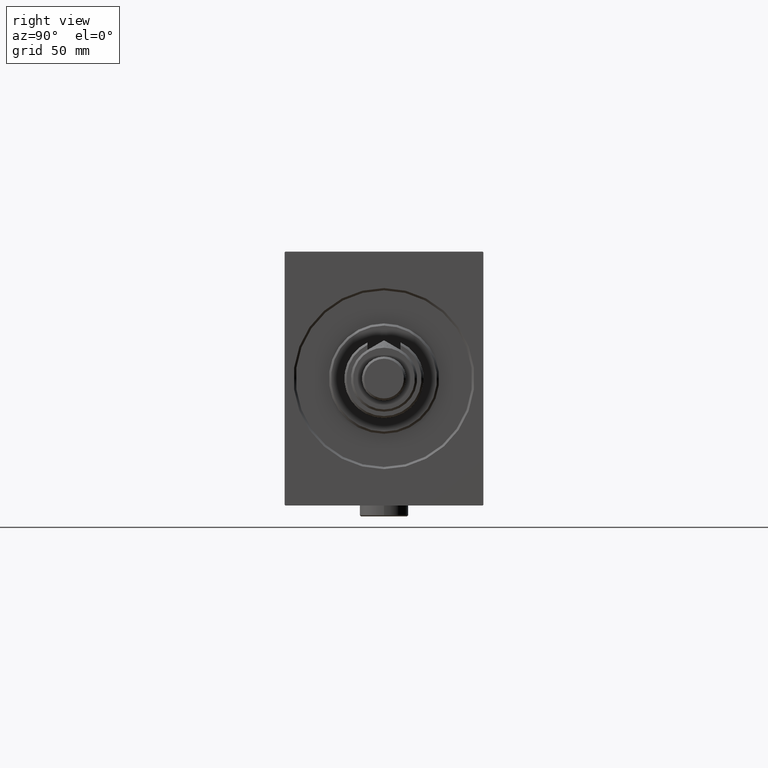
[diagram: clean part render]
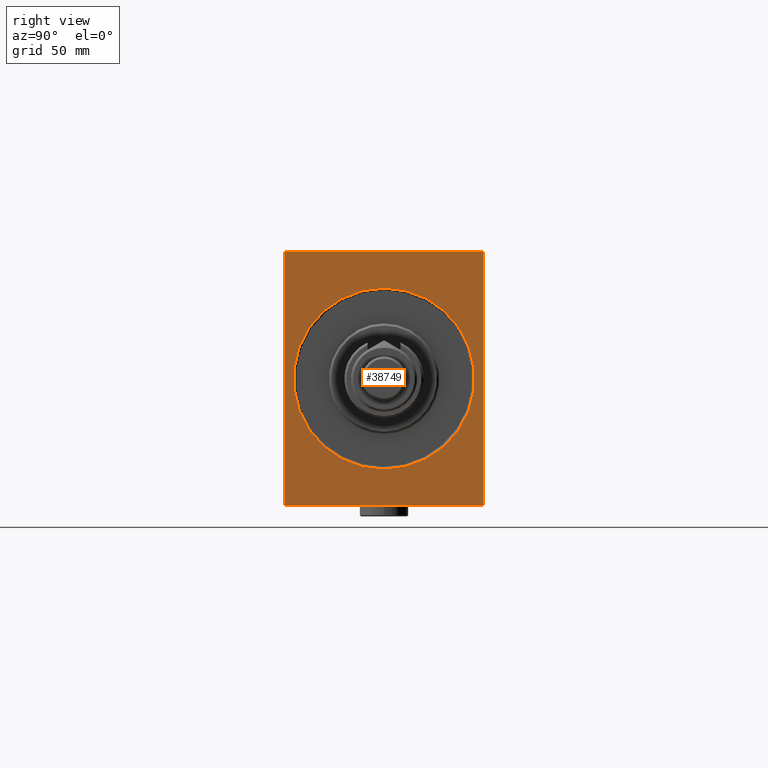
[diagram: same view with one face highlighted and labeled with its STEP entity id]
A machine part, right view. The second image highlights one B-rep face of the part: STEP entity #38749.
In plain terms, the highlighted planar face has unit normal (-1, 0, 0).
Its self-contained STEP definition (entity closure, byte-faithful):
#77 = VERTEX_POINT ( 'NONE', #42113 ) ;
#329 = DIRECTION ( 'NONE',  ( -0.000000000000000000, 0.000000000000000000, -1.000000000000000000 ) ) ;
#408 = CARTESIAN_POINT ( 'NONE',  ( 0.000000000000000000, -45.00000000000000000, 57.20000000000000284 ) ) ;
#612 = CARTESIAN_POINT ( 'NONE',  ( 0.000000000000000000, 0.000000000000000000, 0.000000000000000000 ) ) ;
#634 = EDGE_CURVE ( 'NONE', #77, #33424, #11906, .T. ) ;
#847 = EDGE_CURVE ( 'NONE', #77, #18767, #47194, .T. ) ;
#2350 = LINE ( 'NONE', #16895, #6766 ) ;
#3189 = LINE ( 'NONE', #37012, #34789 ) ;
#3440 = CARTESIAN_POINT ( 'NONE',  ( 0.000000000000000000, 0.000000000000000000, 0.000000000000000000 ) ) ;
#3496 = DIRECTION ( 'NONE',  ( 0.000000000000000000, 0.000000000000000000, -1.000000000000000000 ) ) ;
#4346 = VERTEX_POINT ( 'NONE', #44578 ) ;
#4377 = DIRECTION ( 'NONE',  ( 1.000000000000000000, 0.000000000000000000, -0.000000000000000000 ) ) ;
#4507 = CARTESIAN_POINT ( 'NONE',  ( 0.000000000000000000, 45.00000000000001421, -57.20000000000006679 ) ) ;
#4944 = EDGE_CURVE ( 'NONE', #15700, #15933, #3189, .T. ) ;
#5766 = EDGE_CURVE ( 'NONE', #39246, #20037, #8890, .T. ) ;
#5885 = VECTOR ( 'NONE', #34038, 1000.000000000000114 ) ;
#6015 = AXIS2_PLACEMENT_3D ( 'NONE', #3440, #4377, #329 ) ;
#6537 = DIRECTION ( 'NONE',  ( -0.000000000000000000, 0.7071067811865474617, 0.7071067811865474617 ) ) ;
#6766 = VECTOR ( 'NONE', #38890, 1000.000000000000000 ) ;
#6837 = ORIENTED_EDGE ( 'NONE', *, *, #34240, .T. ) ;
#6866 = CARTESIAN_POINT ( 'NONE',  ( 0.000000000000000000, 45.00000000000001421, -57.50000000000000711 ) ) ;
#8636 = LINE ( 'NONE', #31051, #24345 ) ;
#8657 = ORIENTED_EDGE ( 'NONE', *, *, #39963, .F. ) ;
#8890 = CIRCLE ( 'NONE', #46224, 41.00000000000003553 ) ;
#10981 = DIRECTION ( 'NONE',  ( 1.000000000000000000, 0.000000000000000000, -0.000000000000000000 ) ) ;
#11194 = CARTESIAN_POINT ( 'NONE',  ( 0.000000000000000000, -44.69999999999997442, 57.49999999999999289 ) ) ;
#11249 = DIRECTION ( 'NONE',  ( -0.000000000000000000, 0.7071067811865066055, -0.7071067811865884289 ) ) ;
#11906 = LINE ( 'NONE', #4507, #39961 ) ;
#12015 = DIRECTION ( 'NONE',  ( 0.000000000000000000, -1.000000000000000000, -2.312964634635742957E-16 ) ) ;
#12091 = CARTESIAN_POINT ( 'NONE',  ( 0.000000000000000000, 5.021051876504152118E-15, -41.00000000000003553 ) ) ;
#12193 = CARTESIAN_POINT ( 'NONE',  ( 0.000000000000000000, -44.70000000000005969, -57.50000000000002132 ) ) ;
#12487 = CARTESIAN_POINT ( 'NONE',  ( 0.000000000000000000, 45.00000000000001421, 57.50000000000001421 ) ) ;
#12923 = ORIENTED_EDGE ( 'NONE', *, *, #847, .F. ) ;
#14114 = EDGE_CURVE ( 'NONE', #23502, #18767, #29862, .T. ) ;
#15031 = CARTESIAN_POINT ( 'NONE',  ( 0.000000000000000000, 0.000000000000000000, 0.000000000000000000 ) ) ;
#15700 = VERTEX_POINT ( 'NONE', #408 ) ;
#15814 = CARTESIAN_POINT ( 'NONE',  ( 0.000000000000000000, 0.000000000000000000, 41.00000000000003553 ) ) ;
#15933 = VERTEX_POINT ( 'NONE', #11194 ) ;
#16895 = CARTESIAN_POINT ( 'NONE',  ( 0.000000000000000000, -45.00000000000000000, 57.49999999999999289 ) ) ;
#17531 = ORIENTED_EDGE ( 'NONE', *, *, #34159, .T. ) ;
#18241 = VECTOR ( 'NONE', #12015, 1000.000000000000000 ) ;
#18767 = VERTEX_POINT ( 'NONE', #19870 ) ;
#18877 = CARTESIAN_POINT ( 'NONE',  ( 0.000000000000000000, 44.70000000000004547, 57.50000000000001421 ) ) ;
#19870 = CARTESIAN_POINT ( 'NONE',  ( 0.000000000000000000, 45.00000000000001421, 57.19999999999998863 ) ) ;
#20037 = VERTEX_POINT ( 'NONE', #15814 ) ;
#21424 = DIRECTION ( 'NONE',  ( 0.000000000000000000, 0.000000000000000000, 1.000000000000000000 ) ) ;
#22626 = AXIS2_PLACEMENT_3D ( 'NONE', #612, #25225, #3496 ) ;
#22979 = ORIENTED_EDGE ( 'NONE', *, *, #24145, .F. ) ;
#23502 = VERTEX_POINT ( 'NONE', #31209 ) ;
#24145 = EDGE_CURVE ( 'NONE', #23502, #15933, #44966, .T. ) ;
#24345 = VECTOR ( 'NONE', #26998, 1000.000000000000000 ) ;
#24704 = FACE_BOUND ( 'NONE', #45747, .T. ) ;
#25225 = DIRECTION ( 'NONE',  ( 1.000000000000000000, 0.000000000000000000, -0.000000000000000000 ) ) ;
#26998 = DIRECTION ( 'NONE',  ( 0.000000000000000000, 1.000000000000000000, 1.541976423090495140E-16 ) ) ;
#27754 = VECTOR ( 'NONE', #21424, 1000.000000000000000 ) ;
#28639 = VERTEX_POINT ( 'NONE', #12193 ) ;
#29862 = LINE ( 'NONE', #18877, #32278 ) ;
#30378 = CARTESIAN_POINT ( 'NONE',  ( 0.000000000000000000, 44.70000000000004547, -57.50000000000000711 ) ) ;
#31051 = CARTESIAN_POINT ( 'NONE',  ( 0.000000000000000000, -45.00000000000000000, -57.50000000000002132 ) ) ;
#31209 = CARTESIAN_POINT ( 'NONE',  ( 0.000000000000000000, 44.70000000000004547, 57.50000000000001421 ) ) ;
#31883 = ORIENTED_EDGE ( 'NONE', *, *, #42640, .F. ) ;
#32002 = ORIENTED_EDGE ( 'NONE', *, *, #634, .T. ) ;
#32278 = VECTOR ( 'NONE', #11249, 1000.000000000000000 ) ;
#32468 = DIRECTION ( 'NONE',  ( 0.000000000000000000, 0.000000000000000000, -1.000000000000000000 ) ) ;
#33267 = PLANE ( 'NONE',  #6015 ) ;
#33424 = VERTEX_POINT ( 'NONE', #30378 ) ;
#34038 = DIRECTION ( 'NONE',  ( 0.000000000000000000, -0.7071067811865474617, 0.7071067811865474617 ) ) ;
#34159 = EDGE_CURVE ( 'NONE', #20037, #39246, #47042, .T. ) ;
#34240 = EDGE_CURVE ( 'NONE', #28639, #4346, #41449, .T. ) ;
#34789 = VECTOR ( 'NONE', #6537, 1000.000000000000114 ) ;
#35707 = FACE_OUTER_BOUND ( 'NONE', #41842, .T. ) ;
#37012 = CARTESIAN_POINT ( 'NONE',  ( 0.000000000000000000, -45.00000000000000000, 57.20000000000000284 ) ) ;
#37292 = ORIENTED_EDGE ( 'NONE', *, *, #4944, .T. ) ;
#38472 = ORIENTED_EDGE ( 'NONE', *, *, #5766, .T. ) ;
#38749 = ADVANCED_FACE ( 'NONE', ( #24704, #35707 ), #33267, .F. ) ;
#38890 = DIRECTION ( 'NONE',  ( 0.000000000000000000, 0.000000000000000000, -1.000000000000000000 ) ) ;
#39246 = VERTEX_POINT ( 'NONE', #12091 ) ;
#39961 = VECTOR ( 'NONE', #40803, 1000.000000000000114 ) ;
#39963 = EDGE_CURVE ( 'NONE', #28639, #33424, #8636, .T. ) ;
#40803 = DIRECTION ( 'NONE',  ( -0.000000000000000000, -0.7071067811865474617, -0.7071067811865474617 ) ) ;
#41449 = LINE ( 'NONE', #45258, #5885 ) ;
#41842 = EDGE_LOOP ( 'NONE', ( #22979, #45714, #12923, #32002, #8657, #6837, #31883, #37292 ) ) ;
#42113 = CARTESIAN_POINT ( 'NONE',  ( 0.000000000000000000, 45.00000000000001421, -57.20000000000006679 ) ) ;
#42640 = EDGE_CURVE ( 'NONE', #15700, #4346, #2350, .T. ) ;
#44578 = CARTESIAN_POINT ( 'NONE',  ( 0.000000000000000000, -45.00000000000000000, -57.20000000000005969 ) ) ;
#44966 = LINE ( 'NONE', #12487, #18241 ) ;
#45258 = CARTESIAN_POINT ( 'NONE',  ( 0.000000000000000000, -44.70000000000005969, -57.50000000000002132 ) ) ;
#45714 = ORIENTED_EDGE ( 'NONE', *, *, #14114, .T. ) ;
#45747 = EDGE_LOOP ( 'NONE', ( #17531, #38472 ) ) ;
#46224 = AXIS2_PLACEMENT_3D ( 'NONE', #15031, #10981, #32468 ) ;
#47042 = CIRCLE ( 'NONE', #22626, 41.00000000000003553 ) ;
#47194 = LINE ( 'NONE', #6866, #27754 ) ;